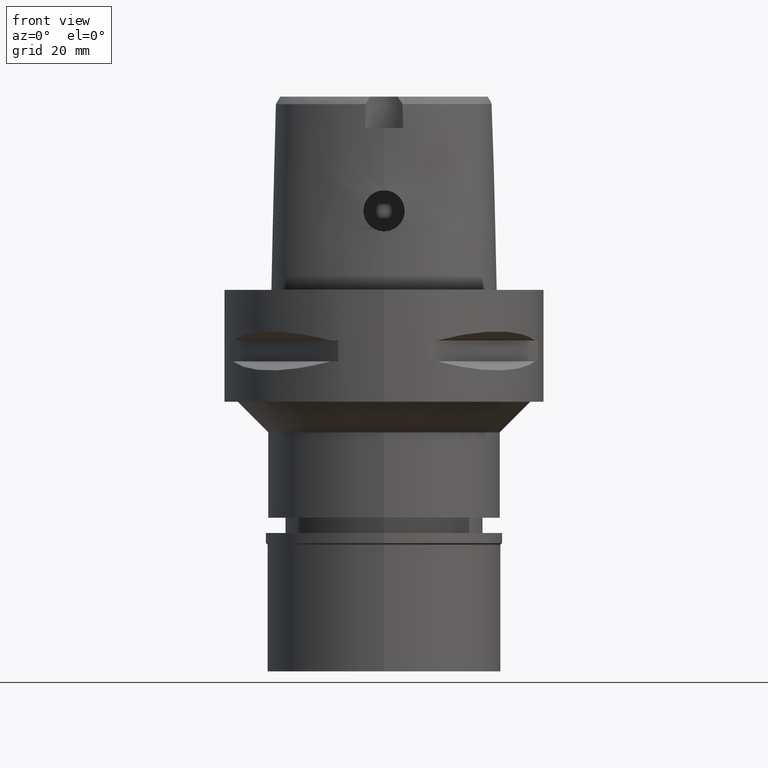
[diagram: clean part render]
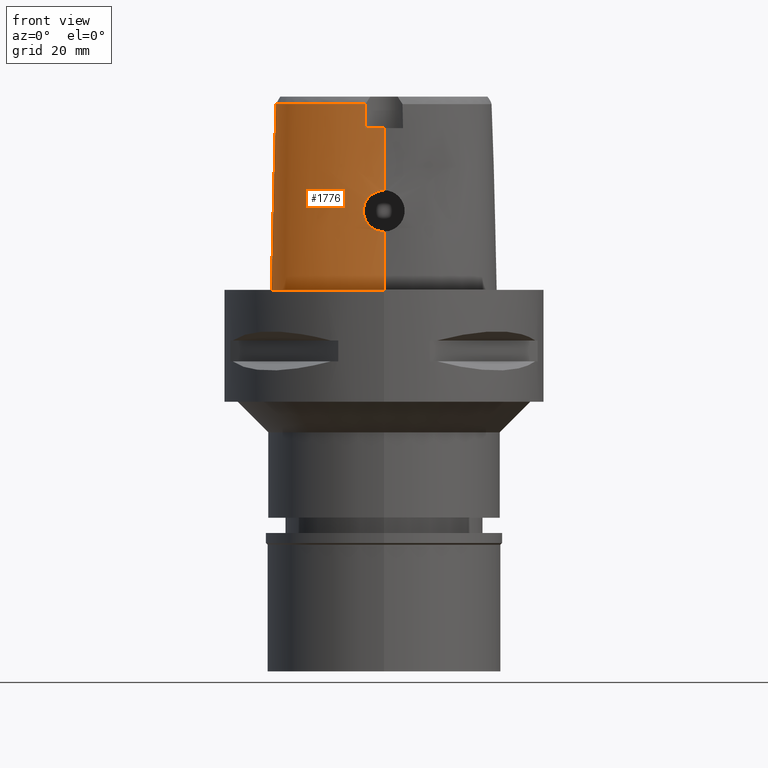
[diagram: same view with one face highlighted and labeled with its STEP entity id]
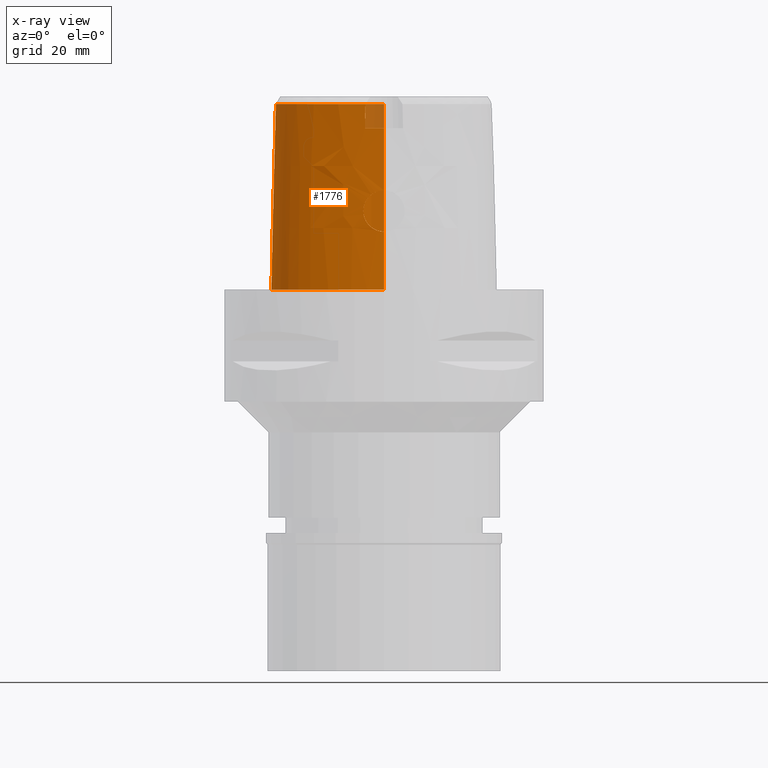
[diagram: x-ray of the same camera — body ghosted, the highlighted face saturated]
A machine part, front view. The second image highlights one B-rep face of the part: STEP entity #1776.
The next image is the same camera in x-ray: the body ghosted, the highlighted face saturated — about 2% of this face is hidden behind the body in this view.
In plain terms, the highlighted face is a freeform B-spline surface patch.
Its self-contained STEP definition (entity closure, byte-faithful):
#42 = CARTESIAN_POINT ( 'NONE',  ( -2.304099082777529617, -20.12795439635679173, 18.83496983991663498 ) ) ;
#99 = CARTESIAN_POINT ( 'NONE',  ( -21.99640701705999746, -0.2778990160308000279, -0.7304377242834000361 ) ) ;
#122 = CARTESIAN_POINT ( 'NONE',  ( -21.31039819279000014, -4.105938497841000512, 37.25232393846000178 ) ) ;
#129 = CARTESIAN_POINT ( 'NONE',  ( -1.826832687016999767E-12, -20.38876923348000147, 11.44999999999999929 ) ) ;
#137 = CARTESIAN_POINT ( 'NONE',  ( -2.575195270586990048, -20.11439625962917432, 18.62722947057160994 ) ) ;
#141 = CARTESIAN_POINT ( 'NONE',  ( -2.113823672984785240, -20.67499999865452054, 5.394426718470166082E-08 ) ) ;
#145 = CARTESIAN_POINT ( 'NONE',  ( -4.750826156157000213, 21.65775789734000156, 37.25232393846000178 ) ) ;
#156 = CARTESIAN_POINT ( 'NONE',  ( -3.836473194797889175, -20.10950281625643044, 14.19905474839410431 ) ) ;
#165 = CARTESIAN_POINT ( 'NONE',  ( -10.55288404862000107, 18.94467586310999607, 11.93048282995999898 ) ) ;
#181 = CARTESIAN_POINT ( 'NONE',  ( -3.756313801935056595, -20.12359777324607890, 13.98583869670187063 ) ) ;
#185 = ORIENTED_EDGE ( 'NONE', *, *, #479, .F. ) ;
#207 = CARTESIAN_POINT ( 'NONE',  ( -3.476909005003220088, -20.16686765807275350, 13.42277733186262445 ) ) ;
#210 = CARTESIAN_POINT ( 'NONE',  ( -19.55745547455991584, -11.29150218116892468, 36.52186244848002161 ) ) ;
#228 = CARTESIAN_POINT ( 'NONE',  ( -2.661040467928366127, -20.26469420361466689, 12.43119016471331939 ) ) ;
#231 = CARTESIAN_POINT ( 'NONE',  ( -4.757642277158513622, 21.67478330407429254, 36.52186244848002161 ) ) ;
#237 = ORIENTED_EDGE ( 'NONE', *, *, #3965, .T. ) ;
#250 = CARTESIAN_POINT ( 'NONE',  ( -1.559072170227480347, -20.34646737278823281, 11.76210362961364275 ) ) ;
#282 = CARTESIAN_POINT ( 'NONE',  ( -11.23887130291000069, -18.91049776120999937, -0.7304377242834000361 ) ) ;
#310 = CARTESIAN_POINT ( 'NONE',  ( -10.91263704988999983, -18.01320792876999732, 37.25232393846000178 ) ) ;
#329 = CARTESIAN_POINT ( 'NONE',  ( -1.818462913027204975, -20.33108044341388165, 11.88067330155456780 ) ) ;
#338 = CARTESIAN_POINT ( 'NONE',  ( -16.97022731178999777, -15.69280483203000109, -0.7304377242834000361 ) ) ;
#361 = B_SPLINE_CURVE_WITH_KNOTS ( 'NONE', 3,
 ( #4429, #1494, #1125, #758 ),
 .UNSPECIFIED., .F., .F.,
 ( 4, 4 ),
 ( 0.0000000000000000000, 1.000000000000000000 ),
 .UNSPECIFIED. ) ;
#364 = CARTESIAN_POINT ( 'NONE',  ( -21.76083710948999794, -6.805026042799999786, 11.93048282995999898 ) ) ;
#453 = CARTESIAN_POINT ( 'NONE',  ( -0.5021651535457528626, -20.18408048145803591, 19.52742942330840137 ) ) ;
#463 = CARTESIAN_POINT ( 'NONE',  ( -0.5985508175918999862, 23.20171275994999860, 11.93048282995999898 ) ) ;
#479 = EDGE_CURVE ( 'NONE', #3764, #3967, #361, .T. ) ;
#486 = CARTESIAN_POINT ( 'NONE',  ( 0.6850314082502000357, 22.83959044786999826, 24.59140338420999683 ) ) ;
#501 = CARTESIAN_POINT ( 'NONE',  ( -16.39211280191443620, -14.95758113319187110, 36.52186244848002161 ) ) ;
#521 = CARTESIAN_POINT ( 'NONE',  ( -4.017499509687334047, -20.04299937993057767, 16.02824823327924619 ) ) ;
#546 = CARTESIAN_POINT ( 'NONE',  ( -3.624896197794989394, -20.05423514832316201, 17.30722841461981076 ) ) ;
#550 = CARTESIAN_POINT ( 'NONE',  ( -5.098437016779843844, 22.52602538937306775, 5.394426718470166082E-08 ) ) ;
#570 = CARTESIAN_POINT ( 'NONE',  ( -3.655143282215830958, -20.14040390920880341, 13.75071885492125823 ) ) ;
#598 = CARTESIAN_POINT ( 'NONE',  ( -3.227734254722520291, -20.20018561865757434, 13.05015028806515254 ) ) ;
#602 = CARTESIAN_POINT ( 'NONE',  ( -21.14970188363933445, -6.717195958887935525, 36.52186244848002161 ) ) ;
#605 = CARTESIAN_POINT ( 'NONE',  ( -0.8548392422010232528, 23.47499999865888753, 5.394426718470166082E-08 ) ) ;
#619 = CARTESIAN_POINT ( 'NONE',  ( -3.482241038291161939, -20.06244686982989833, 17.57217720490708501 ) ) ;
#627 = CARTESIAN_POINT ( 'NONE',  ( -20.74942740752528536, 4.657187499540474285, 5.394426718470166082E-08 ) ) ;
#651 = CARTESIAN_POINT ( 'NONE',  ( -19.15132521134000143, -12.46323148781999990, 24.59140338420999683 ) ) ;
#679 = CARTESIAN_POINT ( 'NONE',  ( -21.44619292674999755, -6.759806549955999166, 24.59140338420999683 ) ) ;
#703 = CARTESIAN_POINT ( 'NONE',  ( -16.57726033543000099, -15.19304461332999878, 24.59140338420999683 ) ) ;
#728 = CARTESIAN_POINT ( 'NONE',  ( -18.89485274342999688, -12.27684370803999947, 37.25232393846000178 ) ) ;
#751 = CARTESIAN_POINT ( 'NONE',  ( 0.4439216898357000174, -19.74161839243000216, 37.25232393846000178 ) ) ;
#758 = CARTESIAN_POINT ( 'NONE',  ( 0.0000000000000000000, -20.18628283968999781, 19.55000000000000071 ) ) ;
#823 = CARTESIAN_POINT ( 'NONE',  ( -3.704239276368590961, -19.64128040965313460, 33.37395414949332917 ) ) ;
#888 = CARTESIAN_POINT ( 'NONE',  ( -3.268776803163001343, -20.07507427391859167, 17.90567709393551965 ) ) ;
#897 = CARTESIAN_POINT ( 'NONE',  ( -20.34961798440012970, -11.74885742119811916, 5.394426718470166082E-08 ) ) ;
#918 = CARTESIAN_POINT ( 'NONE',  ( -2.851627038865336417, -20.09936053837117953, 18.37589353291389571 ) ) ;
#921 = CARTESIAN_POINT ( 'NONE',  ( -3.637738201363999835, -19.56971413236999879, 36.52186244848000030 ) ) ;
#924 = CARTESIAN_POINT ( 'NONE',  ( -22.24453907719170331, -4.100468750007631336, 5.394426718470166082E-08 ) ) ;
#927 = CARTESIAN_POINT ( 'NONE',  ( -22.26285556650000075, -4.100361500042000173, -0.7304377242834000361 ) ) ;
#939 = CARTESIAN_POINT ( 'NONE',  ( -3.706339435656854864, -20.13208760920794660, 13.86332966446841652 ) ) ;
#942 = CARTESIAN_POINT ( 'NONE',  ( 6.719624567468000034E-11, 23.47499999998000320, 1.605012419265999776E-13 ) ) ;
#945 = CARTESIAN_POINT ( 'NONE',  ( -19.64947365754396813, -12.82525390545469079, 5.394426718470166082E-08 ) ) ;
#962 = CARTESIAN_POINT ( 'NONE',  ( -3.102551897856743679, -20.21526254957729307, 12.89595416156903696 ) ) ;
#965 = CARTESIAN_POINT ( 'NONE',  ( -21.32871527669578171, -4.105831244393836066, 36.52186244848002161 ) ) ;
#978 = ORIENTED_EDGE ( 'NONE', *, *, #2034, .F. ) ;
#987 = CARTESIAN_POINT ( 'NONE',  ( -4.049379457050867437, -20.05052600949130692, 15.57777600157836773 ) ) ;
#1011 = CARTESIAN_POINT ( 'NONE',  ( -1.643354294707895846, -20.34174474178620429, 11.79819588084503756 ) ) ;
#1016 = CARTESIAN_POINT ( 'NONE',  ( -20.65879047517000089, -10.48283619113000142, 11.93048282995999898 ) ) ;
#1043 = CARTESIAN_POINT ( 'NONE',  ( 0.6718639825362998641, -20.05378886195000021, 24.59140338420999683 ) ) ;
#1092 = CARTESIAN_POINT ( 'NONE',  ( 0.4479792488988000310, -20.05810149025000300, 24.59140338420999683 ) ) ;
#1115 = CARTESIAN_POINT ( 'NONE',  ( -19.54161169854999969, -11.28235477278999888, 37.25232393846000178 ) ) ;
#1125 = CARTESIAN_POINT ( 'NONE',  ( 6.838579738615130346E-09, -20.08420636276060378, 23.63333344114131052 ) ) ;
#1136 = CARTESIAN_POINT ( 'NONE',  ( -1.517097392495740937, -20.16081054504130066, 19.25513660860794829 ) ) ;
#1161 = CARTESIAN_POINT ( 'NONE',  ( -3.736722311398999796, -19.67781602443999844, 31.80000000000000071 ) ) ;
#1197 = VECTOR ( 'NONE', #1314, 1000.000000000000114 ) ;
#1213 = CARTESIAN_POINT ( 'NONE',  ( -17.53318575628000175, 10.12278928600000150, 24.59140338420999683 ) ) ;
#1229 = VERTEX_POINT ( 'NONE', #3049 ) ;
#1248 = CARTESIAN_POINT ( 'NONE',  ( -3.563526713806381974, -20.15431592875473044, 13.57433995874085397 ) ) ;
#1261 = CARTESIAN_POINT ( 'NONE',  ( -14.42198652087999911, 15.65278600325000014, -0.7304377242834000361 ) ) ;
#1279 = CARTESIAN_POINT ( 'NONE',  ( -3.649880986103389180, -20.05285280448561380, 17.25610404761987837 ) ) ;
#1293 = CARTESIAN_POINT ( 'NONE',  ( -19.86834419747999902, 4.339653626840999756, 37.25232393846000178 ) ) ;
#1307 = CARTESIAN_POINT ( 'NONE',  ( -2.842588197123581129, -20.09987458166016339, 18.38482802312677933 ) ) ;
#1313 = CARTESIAN_POINT ( 'NONE',  ( -14.40795638854461203, 15.64093749912458975, 5.394426718470166082E-08 ) ) ;
#1314 = DIRECTION ( 'NONE',  ( 2.239956200959959971E-12, 0.02499051290944955331, -0.9996876883629820520 ) ) ;
#1317 = CARTESIAN_POINT ( 'NONE',  ( -7.580410840723000199, 21.33037926387000383, -0.7304377242834000361 ) ) ;
#1330 = CARTESIAN_POINT ( 'NONE',  ( -3.383693069586779512, -20.17976184175676835, 13.27442373859632951 ) ) ;
#1333 = CARTESIAN_POINT ( 'NONE',  ( -20.67704215115892552, -8.734985316449199289, 36.52186244848002161 ) ) ;
#1335 = CARTESIAN_POINT ( 'NONE',  ( -18.56841065044135775, -14.16937988188461439, 5.394426718470166082E-08 ) ) ;
#1341 = VERTEX_POINT ( 'NONE', #3396 ) ;
#1349 = B_SPLINE_CURVE_WITH_KNOTS ( 'NONE', 3,
 ( #4116, #3088, #453, #1947, #3428, #4184, #1900, #4583, #4205, #1136, #2363, #2640, #1510, #2993, #2274, #4512, #3384, #42, #3887, #137, #3517, #3134, #1669, #1354, #1307, #918, #3160, #2491, #888, #619, #2468, #546, #1279, #2804, #1693, #2778, #2824, #4606, #2115, #2041, #3541, #3864, #521, #2388, #3910, #4660, #987, #3183, #1626, #3114, #2436, #2017, #3493, #156, #2415, #4259, #4283, #181, #1645, #939, #570, #1248, #2069, #207, #4230, #4684, #4334, #2092, #1330, #4307, #598, #962, #3938, #3565, #4630, #1717, #4705, #3204, #228, #2849, #3962, #2753, #329, #3309, #2894, #1011, #2590, #4384, #3984, #250, #1849, #4435, #1746 ),
 .UNSPECIFIED., .F., .F.,
 ( 4, 2, 2, 1, 1, 1, 1, 1, 2, 2, 2, 2, 2, 1, 1, 1, 2, 2, 2, 2, 2, 1, 1, 2, 2, 2, 2, 1, 2, 2, 2, 2, 1, 1, 1, 2, 2, 2, 2, 1, 1, 2, 2, 2, 1, 1, 1, 2, 2, 2, 2, 2, 1, 1, 2, 2, 4 ),
 ( 0.0000000000000000000, 0.06249999999999852895, 0.09374999999999779343, 0.1093749999999974187, 0.1171874999999973632, 0.1210937499999974742, 0.1230468749999976269, 0.1240234374999976963, 0.1245117187499977379, 0.1249999999999977796, 0.1874999999999982514, 0.2187499999999986677, 0.2343749999999988620, 0.2421874999999990008, 0.2460937499999988620, 0.2480468749999988065, 0.2490234374999987510, 0.2499999999999986677, 0.3125000000000180411, 0.3437500000000273670, 0.3593750000000316414, 0.3671875000000337508, 0.3710937500000344169, 0.3730468750000347500, 0.3750000000000350830, 0.4375000000000441869, 0.4687500000000483502, 0.4843750000000509037, 0.4921875000000516809, 0.5000000000000525135, 0.5625000000000592859, 0.5937500000000623945, 0.6093750000000640599, 0.6171875000000649480, 0.6210937500000651701, 0.6230468750000653921, 0.6250000000000655032, 0.6562500000000643929, 0.6718750000000636158, 0.6796875000000629496, 0.6835937500000625056, 0.6855468750000623945, 0.6875000000000621725, 0.7187500000000573985, 0.7343750000000548450, 0.7421875000000537348, 0.7460937500000529576, 0.7480468750000524025, 0.7500000000000519584, 0.8125000000000367484, 0.8437500000000288658, 0.8593750000000250910, 0.8671875000000233147, 0.8710937500000223155, 0.8730468750000219824, 0.8750000000000215383, 1.000000000000000000 ),
 .UNSPECIFIED. ) ;
#1354 = CARTESIAN_POINT ( 'NONE',  ( -2.829035854865215693, -20.10064330991650294, 18.39816081794787195 ) ) ;
#1411 = CARTESIAN_POINT ( 'NONE',  ( -20.36546124610000064, -11.75800453263999934, -0.7304377242834000361 ) ) ;
#1439 = CARTESIAN_POINT ( 'NONE',  ( -16.77374382361000116, -15.44292472268000083, 11.93048282995999898 ) ) ;
#1485 = CARTESIAN_POINT ( 'NONE',  ( -1.853278689953000047, -20.08023921586000071, 24.59140338420999683 ) ) ;
#1494 = CARTESIAN_POINT ( 'NONE',  ( 6.818620218912680930E-09, -19.98212988583247096, 27.71666688228205189 ) ) ;
#1510 = CARTESIAN_POINT ( 'NONE',  ( -1.541547282058243873, -20.15999205387464954, 19.24514843864790947 ) ) ;
#1578 = ORIENTED_EDGE ( 'NONE', *, *, #4688, .F. ) ;
#1583 = CARTESIAN_POINT ( 'NONE',  ( 6.719624567468000034E-11, 23.47499999998000320, 1.605012419265999776E-13 ) ) ;
#1588 = CARTESIAN_POINT ( 'NONE',  ( -13.93560863584000131, 15.24203789058000069, 24.59140338420999683 ) ) ;
#1601 = CARTESIAN_POINT ( 'NONE',  ( -3.736722311398999796, -19.67781602443999844, 31.80000000000000071 ) ) ;
#1612 = CARTESIAN_POINT ( 'NONE',  ( -22.07548129223000188, -6.850245535645000494, -0.7304377242834000361 ) ) ;
#1626 = CARTESIAN_POINT ( 'NONE',  ( -4.050824733842480541, -20.05812408616773368, 15.26908783582058859 ) ) ;
#1629 = LINE ( 'NONE', #3117, #2078 ) ;
#1630 = CARTESIAN_POINT ( 'NONE',  ( -18.06826688409508819, 10.43171874932905396, 5.394426718470166082E-08 ) ) ;
#1635 = CARTESIAN_POINT ( 'NONE',  ( -7.099337709408000130, 20.50831379254999831, 37.25232393846000178 ) ) ;
#1645 = CARTESIAN_POINT ( 'NONE',  ( -3.752369786519384132, -20.12426981888448552, 13.97609963568124769 ) ) ;
#1656 = CARTESIAN_POINT ( 'NONE',  ( -20.46725043262000199, 4.555493645197000063, 11.93048282995999898 ) ) ;
#1658 = VERTEX_POINT ( 'NONE', #1912 ) ;
#1669 = CARTESIAN_POINT ( 'NONE',  ( -2.797459852880915143, -20.10242065244126763, 18.42879076131220373 ) ) ;
#1680 = CARTESIAN_POINT ( 'NONE',  ( -0.5657070272831000723, 22.56734897904999926, 37.25232393846000178 ) ) ;
#1693 = CARTESIAN_POINT ( 'NONE',  ( -3.701409812263866783, -20.05012169819419654, 17.14417141151779944 ) ) ;
#1696 = CARTESIAN_POINT ( 'NONE',  ( -20.09619618741244551, -10.23243843868189096, 36.52186244848002161 ) ) ;
#1700 = CARTESIAN_POINT ( 'NONE',  ( -21.55524825879477291, -8.996025390239585917, 5.394426718470166082E-08 ) ) ;
#1717 = CARTESIAN_POINT ( 'NONE',  ( -2.902393990458672857, -20.23812546721740446, 12.67534469206559145 ) ) ;
#1720 = CARTESIAN_POINT ( 'NONE',  ( -2.376843896520461019, 22.39422508473878892, 36.52186244848002161 ) ) ;
#1746 = CARTESIAN_POINT ( 'NONE',  ( -1.826832687016999767E-12, -20.38876923348000147, 11.44999999999999929 ) ) ;
#1756 = B_SPLINE_SURFACE_WITH_KNOTS ( 'NONE', 3, 3, ( 
 ( #1957, #3144, #486, #3483 ),
 ( #3101, #3074, #4595, #3525 ),
 ( #3502, #463, #2741, #1680 ),
 ( #4195, #4269, #4668, #4215 ),
 ( #2378, #4643, #4570, #145 ),
 ( #1317, #3874, #3853, #1635 ),
 ( #2424, #165, #3809, #4616 ),
 ( #1261, #3441, #1588, #2027 ),
 ( #3170, #2764, #1213, #2719 ),
 ( #4244, #1656, #4174, #1293 ),
 ( #99, #2789, #2352, #1980 ),
 ( #927, #3462, #3896, #122 ),
 ( #1612, #364, #679, #3291 ),
 ( #2149, #4441, #2254, #2900 ),
 ( #4070, #1016, #4790, #1830 ),
 ( #1411, #4464, #2619, #1115 ),
 ( #2548, #2178, #651, #728 ),
 ( #3672, #2228, #1855, #4764 ),
 ( #338, #1439, #703, #3652 ),
 ( #1876, #2574, #3337, #4023 ),
 ( #282, #4292, #3084, #310 ),
 ( #3699, #3991, #2596, #2948 ),
 ( #4094, #2970, #1485, #4051 ),
 ( #1807, #4392, #1092, #751 ),
 ( #2926, #3316, #1043, #4418 ) ),
 .UNSPECIFIED., .F., .F., .F.,
 ( 4, 1, 1, 1, 1, 1, 1, 1, 1, 1, 1, 1, 1, 1, 1, 1, 1, 1, 1, 1, 1, 1, 4 ),
 ( 4, 4 ),
 ( -0.01173777939057999917, 0.0000000000000000000, 0.04166666666769999749, 0.08333333333431000578, 0.1250000000009000023, 0.1666666666676000219, 0.2500000000008000267, 0.3333333333339000282, 0.4166666666672000363, 0.5000000000004000134, 0.5416666666671000607, 0.5833333333336000459, 0.6250000000002999823, 0.6458333333335000148, 0.6666666666668999985, 0.6875000000001999512, 0.7083333333335000148, 0.7500000000001000311, 0.7916666666667000474, 0.8333333333333000637, 0.9166666666666000163, 1.000000000000000000, 1.008985696609000060 ),
 ( 2.170447224724999960E-10, 0.9999999889306999679 ),
 .UNSPECIFIED. ) ;
#1776 = ADVANCED_FACE ( 'NONE', ( #2052 ), #1756, .T. ) ;
#1807 = CARTESIAN_POINT ( 'NONE',  ( 0.4560943670248999715, -20.69106768591000289, -0.7304377242834000361 ) ) ;
#1830 = CARTESIAN_POINT ( 'NONE',  ( -20.07948490614000292, -10.22500063250000046, 37.25232393846000178 ) ) ;
#1849 = CARTESIAN_POINT ( 'NONE',  ( -1.038007860042968966, -20.37481398046827863, 11.54607788070364549 ) ) ;
#1855 = CARTESIAN_POINT ( 'NONE',  ( -18.12052900412999890, -13.74516023949999877, 24.59140338420999683 ) ) ;
#1876 = CARTESIAN_POINT ( 'NONE',  ( -14.68244497174999985, -17.23001773127000291, -0.7304377242834000361 ) ) ;
#1900 = CARTESIAN_POINT ( 'NONE',  ( -1.316968882914075101, -20.16708102885505483, 19.33099766236265893 ) ) ;
#1912 = CARTESIAN_POINT ( 'NONE',  ( -3.637738201363999835, -19.56971413236999879, 36.52186244848000030 ) ) ;
#1914 = VERTEX_POINT ( 'NONE', #1601 ) ;
#1947 = CARTESIAN_POINT ( 'NONE',  ( -0.8915481050311913069, -20.17747340676214307, 19.45286053089489897 ) ) ;
#1957 = CARTESIAN_POINT ( 'NONE',  ( 0.7234356452010001215, 23.47140592779999579, -0.7304377242834000361 ) ) ;
#1980 = CARTESIAN_POINT ( 'NONE',  ( -21.05621897926999964, -0.4440251824331999941, 37.25232393846000178 ) ) ;
#1999 = CARTESIAN_POINT ( 'NONE',  ( -18.90964971338537381, -12.28759719904793180, 36.52186244848002161 ) ) ;
#2017 = CARTESIAN_POINT ( 'NONE',  ( -3.925553713381779719, -20.09219264169007957, 14.49440713088822541 ) ) ;
#2020 = CARTESIAN_POINT ( 'NONE',  ( -13.70645028111636954, 15.04851272300554044, 36.52186244848002161 ) ) ;
#2023 = CARTESIAN_POINT ( 'NONE',  ( -1.465436232204999878E-11, -20.67499999999999716, 1.633878217906999793E-13 ) ) ;
#2027 = CARTESIAN_POINT ( 'NONE',  ( -13.69241969333000064, 15.03666383424999964, 37.25232393846000178 ) ) ;
#2034 = EDGE_CURVE ( 'NONE', #3967, #2376, #1349, .T. ) ;
#2041 = CARTESIAN_POINT ( 'NONE',  ( -3.843224375101378154, -20.04326965201131827, 16.80669846353523766 ) ) ;
#2044 = CARTESIAN_POINT ( 'NONE',  ( -19.88562090097893176, 4.345879983792301005, 36.52186244848002161 ) ) ;
#2052 = FACE_OUTER_BOUND ( 'NONE', #4440, .T. ) ;
#2069 = CARTESIAN_POINT ( 'NONE',  ( -3.530515804428643989, -20.15919286352747974, 13.51431142344410397 ) ) ;
#2078 = VECTOR ( 'NONE', #2756, 1000.000000000000114 ) ;
#2092 = CARTESIAN_POINT ( 'NONE',  ( -3.389445702475275102, -20.17898258087162944, 13.28319039044997396 ) ) ;
#2110 = B_SPLINE_CURVE_WITH_KNOTS ( 'NONE', 3,
 ( #1583, #605, #2809, #550, #2398, #3893, #1313, #1630, #627, #3522, #924, #4239, #1700, #4342, #897, #945, #1335, #2124, #3869, #2419, #2475, #141, #2023 ),
 .UNSPECIFIED., .F., .F.,
 ( 4, 1, 1, 1, 1, 1, 1, 1, 1, 1, 1, 1, 1, 1, 1, 1, 1, 1, 1, 1, 4 ),
 ( 0.0000000000000000000, 0.04166666666769999749, 0.08333333333431000578, 0.1250000000009000023, 0.1666666666676000219, 0.2500000000008000267, 0.3333333333339000282, 0.4166666666672000363, 0.5000000000004000134, 0.5416666666671000607, 0.5833333333336000459, 0.6250000000002999823, 0.6458333333335000148, 0.6666666666668999985, 0.6875000000001999512, 0.7083333333335000148, 0.7500000000001000311, 0.7916666666667000474, 0.8333333333333000637, 0.9166666666666000163, 1.000000000000000000 ),
 .UNSPECIFIED. ) ;
#2115 = CARTESIAN_POINT ( 'NONE',  ( -3.734198881099329181, -20.04849281986396647, 17.06790697594494333 ) ) ;
#2124 = CARTESIAN_POINT ( 'NONE',  ( -16.95889172509630072, -15.67838867081052712, 5.394426718470166082E-08 ) ) ;
#2149 = CARTESIAN_POINT ( 'NONE',  ( -21.57281239370000137, -9.001246195505999026, -0.7304377242834000361 ) ) ;
#2178 = CARTESIAN_POINT ( 'NONE',  ( -19.40779767925999977, -12.64961926760999944, 11.93048282995999898 ) ) ;
#2228 = CARTESIAN_POINT ( 'NONE',  ( -18.35112153540999813, -13.96357035289000059, 11.93048282995999898 ) ) ;
#2254 = CARTESIAN_POINT ( 'NONE',  ( -20.96392242861999833, -8.820258292971001168, 24.59140338420999683 ) ) ;
#2274 = CARTESIAN_POINT ( 'NONE',  ( -1.657708213642430817, -20.15606683021167456, 19.19718931528049666 ) ) ;
#2278 = EDGE_CURVE ( 'NONE', #3764, #1914, #4612, .T. ) ;
#2315 = CARTESIAN_POINT ( 'NONE',  ( -1.251533273950113712, -19.88005341379972890, 31.80000012753031413 ) ) ;
#2352 = CARTESIAN_POINT ( 'NONE',  ( -21.36961499186000069, -0.3886497936323999869, 24.59140338420999683 ) ) ;
#2363 = CARTESIAN_POINT ( 'NONE',  ( -1.531361603601433918, -20.16033442487177041, 19.24932868161032928 ) ) ;
#2376 = VERTEX_POINT ( 'NONE', #129 ) ;
#2378 = CARTESIAN_POINT ( 'NONE',  ( -5.105252916520999662, 22.54305024344000330, -0.7304377242834000361 ) ) ;
#2388 = CARTESIAN_POINT ( 'NONE',  ( -4.036685087364365820, -20.04559688298824227, 15.83449309712651321 ) ) ;
#2398 = CARTESIAN_POINT ( 'NONE',  ( -7.571159433668283256, 21.31457031133111713, 5.394426718470166082E-08 ) ) ;
#2415 = CARTESIAN_POINT ( 'NONE',  ( -3.794745376945647841, -20.11695093349811359, 14.08417439677006300 ) ) ;
#2418 = CARTESIAN_POINT ( 'NONE',  ( -0.7901461696979170668, 22.56201478746820399, 36.52186244848002161 ) ) ;
#2419 = CARTESIAN_POINT ( 'NONE',  ( -11.23259756681148858, -18.89324218623449525, 5.394426718470166082E-08 ) ) ;
#2424 = CARTESIAN_POINT ( 'NONE',  ( -10.75753573887999970, 19.18839675838000147, -0.7304377242834000361 ) ) ;
#2436 = CARTESIAN_POINT ( 'NONE',  ( -3.956610890796017799, -20.08538093254165346, 14.62527450727513845 ) ) ;
#2468 = CARTESIAN_POINT ( 'NONE',  ( -3.544032112836471349, -20.05881551394212892, 17.46370169139178330 ) ) ;
#2475 = CARTESIAN_POINT ( 'NONE',  ( -6.341471018971764906, -20.29812499867400888, 5.394426718470166082E-08 ) ) ;
#2491 = CARTESIAN_POINT ( 'NONE',  ( -3.088779611815302140, -20.08580365854490779, 18.13927671558208488 ) ) ;
#2548 = CARTESIAN_POINT ( 'NONE',  ( -19.66427014717000077, -12.83600704738999987, -0.7304377242834000361 ) ) ;
#2574 = CARTESIAN_POINT ( 'NONE',  ( -14.52531262751999996, -16.95413747258999848, 11.93048282995999898 ) ) ;
#2582 = ORIENTED_EDGE ( 'NONE', *, *, #3188, .F. ) ;
#2590 = CARTESIAN_POINT ( 'NONE',  ( -1.597046619668031298, -20.34436721359303846, 11.77813202158574413 ) ) ;
#2596 = CARTESIAN_POINT ( 'NONE',  ( -6.232237577198000089, -19.68961175736999891, 24.59140338420999683 ) ) ;
#2619 = CARTESIAN_POINT ( 'NONE',  ( -19.81622821440000237, -11.44090469273999844, 24.59140338420999683 ) ) ;
#2640 = CARTESIAN_POINT ( 'NONE',  ( -1.537473229461865154, -20.16012916357902895, 19.24682277656898677 ) ) ;
#2688 = CARTESIAN_POINT ( 'NONE',  ( -3.637738201363999835, -19.56971413236999879, 36.52186244848000030 ) ) ;
#2719 = CARTESIAN_POINT ( 'NONE',  ( -17.25769844234000061, 9.963736492648999743, 37.25232393846000178 ) ) ;
#2741 = CARTESIAN_POINT ( 'NONE',  ( -0.5821289224375000293, 22.88453086950000070, 24.59140338420999683 ) ) ;
#2753 = CARTESIAN_POINT ( 'NONE',  ( -1.983135000437550532, -20.32016783879232236, 11.96658691424555343 ) ) ;
#2756 = DIRECTION ( 'NONE',  ( -1.119958379758975927E-12, -0.02499051295360945474, -0.9996876883618780463 ) ) ;
#2764 = CARTESIAN_POINT ( 'NONE',  ( -17.80867307020999846, 10.28184207934999961, 11.93048282995999898 ) ) ;
#2770 = CARTESIAN_POINT ( 'NONE',  ( -2.503154198992980195, -19.81241979316230939, 31.80000012753031413 ) ) ;
#2778 = CARTESIAN_POINT ( 'NONE',  ( -3.719815774827158972, -20.04919652284363352, 17.10180193933601345 ) ) ;
#2789 = CARTESIAN_POINT ( 'NONE',  ( -21.68301100445999552, -0.3332744048315999796, 11.93048282995999898 ) ) ;
#2804 = CARTESIAN_POINT ( 'NONE',  ( -3.684679946967315711, -20.05099595578247218, 17.18118763025232809 ) ) ;
#2809 = CARTESIAN_POINT ( 'NONE',  ( -2.564517726680201282, 23.29328124867609873, 5.394426718470166082E-08 ) ) ;
#2824 = CARTESIAN_POINT ( 'NONE',  ( -3.727472022725065948, -20.04882033165820943, 17.08382271098091465 ) ) ;
#2827 = CARTESIAN_POINT ( 'NONE',  ( -21.07430010673063947, -0.4408303445192952585, 36.52186244848002161 ) ) ;
#2849 = CARTESIAN_POINT ( 'NONE',  ( -2.432602504665474896, -20.28555005867885086, 12.25084032482351581 ) ) ;
#2894 = CARTESIAN_POINT ( 'NONE',  ( -1.683435764107642951, -20.33938606615241440, 11.81633018416102132 ) ) ;
#2900 = CARTESIAN_POINT ( 'NONE',  ( -20.65947744608000036, -8.729764341702999531, 37.25232393846000178 ) ) ;
#2926 = CARTESIAN_POINT ( 'NONE',  ( 0.6840430853781001019, -20.68668155098999861, -0.7304377242834000361 ) ) ;
#2942 = ORIENTED_EDGE ( 'NONE', *, *, #4645, .T. ) ;
#2948 = CARTESIAN_POINT ( 'NONE',  ( -6.175998577349999685, -19.37631781066999892, 37.25232393846000178 ) ) ;
#2970 = CARTESIAN_POINT ( 'NONE',  ( -1.870070491122000078, -20.39691390805000282, 11.93048282995999898 ) ) ;
#2993 = CARTESIAN_POINT ( 'NONE',  ( -1.544745100927058523, -20.15988413239623611, 19.24383005366236432 ) ) ;
#3049 = CARTESIAN_POINT ( 'NONE',  ( -1.463669373056000196E-11, 22.56201468012000078, 36.52186680743999858 ) ) ;
#3074 = CARTESIAN_POINT ( 'NONE',  ( 0.4696382040349999509, 23.16972803812000237, 11.93048282995999898 ) ) ;
#3084 = CARTESIAN_POINT ( 'NONE',  ( -11.02138180090000041, -18.31230453958000126, 24.59140338420999683 ) ) ;
#3088 = CARTESIAN_POINT ( 'NONE',  ( -0.2465729415557290916, -20.18628283969000137, 19.55000000000000426 ) ) ;
#3101 = CARTESIAN_POINT ( 'NONE',  ( 0.4823619558034999977, 23.48603818325999981, -0.7304377242834000361 ) ) ;
#3114 = CARTESIAN_POINT ( 'NONE',  ( -4.029436667751283174, -20.06721303821910851, 15.01440978620335187 ) ) ;
#3117 = CARTESIAN_POINT ( 'NONE',  ( -1.826832687016999767E-12, -20.38876923348000147, 11.44999999999999929 ) ) ;
#3134 = CARTESIAN_POINT ( 'NONE',  ( -2.734529222344301402, -20.10590991053076948, 18.48815259471838957 ) ) ;
#3144 = CARTESIAN_POINT ( 'NONE',  ( 0.7042335267256000231, 23.15549818783999925, 11.93048282995999898 ) ) ;
#3160 = CARTESIAN_POINT ( 'NONE',  ( -2.857107388525124581, -20.09904791621536191, 18.37044643257095089 ) ) ;
#3170 = CARTESIAN_POINT ( 'NONE',  ( -18.08416038414999960, 10.44089487269999950, -0.7304377242834000361 ) ) ;
#3183 = CARTESIAN_POINT ( 'NONE',  ( -4.049869536808598625, -20.05129986479403215, 15.54465711046712428 ) ) ;
#3188 = EDGE_CURVE ( 'NONE', #1658, #1914, #4398, .T. ) ;
#3198 = CARTESIAN_POINT ( 'NONE',  ( -3.736722311398999796, -19.67781602443999844, 31.80000000000000071 ) ) ;
#3204 = CARTESIAN_POINT ( 'NONE',  ( -2.886021971856666202, -20.23993521848957755, 12.65861457159664916 ) ) ;
#3291 = CARTESIAN_POINT ( 'NONE',  ( -21.13154874401999805, -6.714587057112000323, 37.25232393846000178 ) ) ;
#3309 = CARTESIAN_POINT ( 'NONE',  ( -1.764072445785799026, -20.33452092467620531, 11.85389721181385703 ) ) ;
#3316 = CARTESIAN_POINT ( 'NONE',  ( 0.6779535339571999275, -20.37023520647000296, 11.93048282995999898 ) ) ;
#3337 = CARTESIAN_POINT ( 'NONE',  ( -14.36818028329000008, -16.67825721391999849, 24.59140338420999683 ) ) ;
#3384 = CARTESIAN_POINT ( 'NONE',  ( -2.177740692565643066, -20.13383618069716618, 18.91723801410913097 ) ) ;
#3396 = CARTESIAN_POINT ( 'NONE',  ( -1.465436232204999878E-11, -20.67499999999999716, 1.633878217906999793E-13 ) ) ;
#3428 = CARTESIAN_POINT ( 'NONE',  ( -1.022312669549168440, -20.17472045897218891, 19.42122845418660404 ) ) ;
#3432 = EDGE_CURVE ( 'NONE', #1229, #4626, #4591, .T. ) ;
#3441 = CARTESIAN_POINT ( 'NONE',  ( -14.17879757836000110, 15.44741194690999997, 11.93048282995999898 ) ) ;
#3462 = CARTESIAN_POINT ( 'NONE',  ( -21.94536977526999877, -4.102220499308999457, 11.93048282995999898 ) ) ;
#3483 = CARTESIAN_POINT ( 'NONE',  ( 0.6658292897748999684, 22.52368270790999816, 37.25232393846000178 ) ) ;
#3493 = CARTESIAN_POINT ( 'NONE',  ( -3.867994509549464333, -20.10354382197409606, 14.29758962169371372 ) ) ;
#3502 = CARTESIAN_POINT ( 'NONE',  ( -0.6149727127463000542, 23.51889465040999738, -0.7304377242834000361 ) ) ;
#3517 = CARTESIAN_POINT ( 'NONE',  ( -2.681092270827882817, -20.10878854267598470, 18.53585538952751932 ) ) ;
#3520 = CARTESIAN_POINT ( 'NONE',  ( -14.22011356156339268, -16.41829364186225959, 36.52186244848002161 ) ) ;
#3522 = CARTESIAN_POINT ( 'NONE',  ( -21.97832647653624250, -0.2810937502360148499, 5.394426718470166082E-08 ) ) ;
#3525 = CARTESIAN_POINT ( 'NONE',  ( 0.4441907004978999929, 22.53710774784999771, 37.25232393846000178 ) ) ;
#3541 = CARTESIAN_POINT ( 'NONE',  ( -3.921180028949368790, -20.04104750445544880, 16.54730076849723375 ) ) ;
#3544 = CARTESIAN_POINT ( 'NONE',  ( -17.90324032096868478, -13.53935111955040327, 36.52186244848002161 ) ) ;
#3565 = CARTESIAN_POINT ( 'NONE',  ( -2.959667657123309592, -20.23174018287047815, 12.73507955834137384 ) ) ;
#3568 = CARTESIAN_POINT ( 'NONE',  ( -7.108589416785393134, 20.52412325828517581, 36.52186244848002161 ) ) ;
#3652 = CARTESIAN_POINT ( 'NONE',  ( -16.38077684723999994, -14.94316450398999940, 37.25232393846000178 ) ) ;
#3672 = CARTESIAN_POINT ( 'NONE',  ( -18.58171406669000092, -14.18198046628000064, -0.7304377242834000361 ) ) ;
#3699 = CARTESIAN_POINT ( 'NONE',  ( -6.344715576895000098, -20.31619965077999979, -0.7304377242834000361 ) ) ;
#3764 = VERTEX_POINT ( 'NONE', #4221 ) ;
#3809 = CARTESIAN_POINT ( 'NONE',  ( -10.34823235836000066, 18.70095496783999778, 24.59140338420999683 ) ) ;
#3853 = CARTESIAN_POINT ( 'NONE',  ( -7.259695419846000419, 20.78233561632000104, 24.59140338420999683 ) ) ;
#3864 = CARTESIAN_POINT ( 'NONE',  ( -3.998372078226481108, -20.04197839684622195, 16.15804152896335921 ) ) ;
#3867 = CARTESIAN_POINT ( 'NONE',  ( -17.27359245833581980, 9.972912913898845488, 36.52186244848002161 ) ) ;
#3869 = CARTESIAN_POINT ( 'NONE',  ( -14.67337964352877400, -17.21410156132457203, 5.394426718470166082E-08 ) ) ;
#3874 = CARTESIAN_POINT ( 'NONE',  ( -7.420053130283999820, 21.05635744010000110, 11.93048282995999898 ) ) ;
#3887 = CARTESIAN_POINT ( 'NONE',  ( -2.505908426539208200, -20.11793534114831061, 18.68276955840385156 ) ) ;
#3890 = CARTESIAN_POINT ( 'NONE',  ( -10.91891098964894269, -18.03046406390204126, 36.52186244848002161 ) ) ;
#3893 = CARTESIAN_POINT ( 'NONE',  ( -10.74572890972380890, 19.17433593646061496, 5.394426718470166082E-08 ) ) ;
#3896 = CARTESIAN_POINT ( 'NONE',  ( -21.62788398402999945, -4.104079498574999540, 24.59140338420999683 ) ) ;
#3910 = CARTESIAN_POINT ( 'NONE',  ( -4.043902980537893654, -20.04716214162487375, 15.73784779713190574 ) ) ;
#3913 = CARTESIAN_POINT ( 'NONE',  ( -7.300578999876146113, -19.07170748891589795, 36.52186244848002161 ) ) ;
#3936 = ORIENTED_EDGE ( 'NONE', *, *, #2278, .T. ) ;
#3938 = CARTESIAN_POINT ( 'NONE',  ( -3.038069894017271899, -20.22283785541080903, 12.82039115562990972 ) ) ;
#3941 = CARTESIAN_POINT ( 'NONE',  ( -4.467522189395036314, -19.48130287050625142, 36.52186244848002161 ) ) ;
#3947 = CARTESIAN_POINT ( 'NONE',  ( 0.0000000000000000000, -20.18628283968999781, 19.55000000000000071 ) ) ;
#3962 = CARTESIAN_POINT ( 'NONE',  ( -2.094934931762427510, -20.31210455459852326, 12.03131566486571558 ) ) ;
#3965 = EDGE_CURVE ( 'NONE', #4626, #1341, #2110, .T. ) ;
#3967 = VERTEX_POINT ( 'NONE', #3947 ) ;
#3984 = CARTESIAN_POINT ( 'NONE',  ( -1.564161459830658796, -20.34618806537523028, 11.76423371488831471 ) ) ;
#3991 = CARTESIAN_POINT ( 'NONE',  ( -6.288476577046999694, -20.00290570407999979, 11.93048282995999898 ) ) ;
#4023 = CARTESIAN_POINT ( 'NONE',  ( -14.21104793905999841, -16.40237695523999761, 37.25232393846000178 ) ) ;
#4051 = CARTESIAN_POINT ( 'NONE',  ( -1.836486888782999927, -19.76356452367999950, 37.25232393846000178 ) ) ;
#4070 = CARTESIAN_POINT ( 'NONE',  ( -20.94844325968000120, -10.61175397044999968, -0.7304377242834000361 ) ) ;
#4094 = CARTESIAN_POINT ( 'NONE',  ( -1.886862292291000109, -20.71358860023999782, -0.7304377242834000361 ) ) ;
#4116 = CARTESIAN_POINT ( 'NONE',  ( 0.0000000000000000000, -20.18628283968999781, 19.55000000000000071 ) ) ;
#4174 = CARTESIAN_POINT ( 'NONE',  ( -20.16779731504999873, 4.447573636019000354, 24.59140338420999683 ) ) ;
#4184 = CARTESIAN_POINT ( 'NONE',  ( -1.218710204607966308, -20.16976515295027639, 19.36288873555080414 ) ) ;
#4195 = CARTESIAN_POINT ( 'NONE',  ( -2.568271206009000274, 23.31126238501000003, -0.7304377242834000361 ) ) ;
#4205 = CARTESIAN_POINT ( 'NONE',  ( -1.488554589355807423, -20.16175149399294142, 19.26659595023654248 ) ) ;
#4215 = CARTESIAN_POINT ( 'NONE',  ( -2.373090295326000021, 22.37624336469999875, 37.25232393846000178 ) ) ;
#4221 = CARTESIAN_POINT ( 'NONE',  ( 2.041042029990999821E-08, -19.88004246002000031, 31.80000004972000127 ) ) ;
#4230 = CARTESIAN_POINT ( 'NONE',  ( -3.449083010568995800, -20.17079490344193715, 13.37663836445438470 ) ) ;
#4233 = CARTESIAN_POINT ( 'NONE',  ( -10.15538788053401476, 18.47129535093718644, 36.52186244848002161 ) ) ;
#4239 = CARTESIAN_POINT ( 'NONE',  ( -22.05732874188516845, -6.847636718557430946, 5.394426718470166082E-08 ) ) ;
#4244 = CARTESIAN_POINT ( 'NONE',  ( -20.76670355020000258, 4.663413654376000750, -0.7304377242834000361 ) ) ;
#4259 = CARTESIAN_POINT ( 'NONE',  ( -3.772625616421835471, -20.12079898143034740, 14.02679301405773771 ) ) ;
#4269 = CARTESIAN_POINT ( 'NONE',  ( -2.503210902448000041, 22.99958937824000316, 11.93048282995999898 ) ) ;
#4283 = CARTESIAN_POINT ( 'NONE',  ( -3.762874773092987901, -20.12247471396803888, 14.00221788198894046 ) ) ;
#4292 = CARTESIAN_POINT ( 'NONE',  ( -11.13012655189999833, -18.61140115039000165, 11.93048282995999898 ) ) ;
#4302 = ORIENTED_EDGE ( 'NONE', *, *, #3432, .T. ) ;
#4307 = CARTESIAN_POINT ( 'NONE',  ( -3.306143786162188736, -20.19023257237418179, 13.15704347128199458 ) ) ;
#4334 = CARTESIAN_POINT ( 'NONE',  ( -3.399621443852326674, -20.17759862566812501, 13.29882734581749304 ) ) ;
#4342 = CARTESIAN_POINT ( 'NONE',  ( -20.93173252087798275, -10.60431640570919143, 5.394426718470166082E-08 ) ) ;
#4384 = CARTESIAN_POINT ( 'NONE',  ( -1.577301757021897011, -20.34546341941756964, 11.76976274525434185 ) ) ;
#4392 = CARTESIAN_POINT ( 'NONE',  ( 0.4520368079618999890, -20.37458458807999762, 11.93048282995999898 ) ) ;
#4398 = B_SPLINE_CURVE_WITH_KNOTS ( 'NONE', 3,
 ( #2688, #4446, #823, #1161 ),
 .UNSPECIFIED., .F., .F.,
 ( 4, 4 ),
 ( 0.0000000000000000000, 1.000000000000000000 ),
 .UNSPECIFIED. ) ;
#4418 = CARTESIAN_POINT ( 'NONE',  ( 0.6657744311152999916, -19.73734251743000101, 37.25232393846000178 ) ) ;
#4425 = B_SPLINE_CURVE_WITH_KNOTS ( 'NONE', 3,
 ( #921, #3941, #3913, #3890, #3520, #501, #3544, #1999, #210, #1696, #1333, #602, #965, #2827, #2044, #3867, #2020, #4233, #3568, #231, #1720, #2418, #4609 ),
 .UNSPECIFIED., .F., .F.,
 ( 4, 1, 1, 1, 1, 1, 1, 1, 1, 1, 1, 1, 1, 1, 1, 1, 1, 1, 1, 1, 4 ),
 ( 0.0000000000000000000, 0.03580973941716267261, 0.1234633994701191395, 0.1672902294965448455, 0.2111170595229705238, 0.2549438895493962298, 0.2768573045626090967, 0.2987707195758219081, 0.3206841345891399131, 0.3425975496022475864, 0.3864243796287783472, 0.4302512096550988319, 0.4740780396816297593, 0.5617316997344810048, 0.6493853597874376105, 0.7370390198401837178, 0.8246926798930350744, 0.8685195099195660573, 0.9123463399459811329, 0.9561731699724173028, 1.000000000000000000 ),
 .UNSPECIFIED. ) ;
#4429 = CARTESIAN_POINT ( 'NONE',  ( 2.041042029990999821E-08, -19.88004246002000031, 31.80000004972000127 ) ) ;
#4435 = CARTESIAN_POINT ( 'NONE',  ( -0.5057526035072211767, -20.38876923347999437, 11.44999999999999929 ) ) ;
#4440 = EDGE_LOOP ( 'NONE', ( #1578, #978, #185, #3936, #2582, #2942, #4302, #237 ) ) ;
#4441 = CARTESIAN_POINT ( 'NONE',  ( -21.26836741115999985, -8.910752244238000941, 11.93048282995999898 ) ) ;
#4446 = CARTESIAN_POINT ( 'NONE',  ( -3.671249123513567802, -19.60525173594972514, 34.94790829898666829 ) ) ;
#4464 = CARTESIAN_POINT ( 'NONE',  ( -20.09084473025000150, -11.59945461268999978, 11.93048282995999898 ) ) ;
#4512 = CARTESIAN_POINT ( 'NONE',  ( -1.835580386052855006, -20.14908877632251816, 19.11986537358136928 ) ) ;
#4550 = CARTESIAN_POINT ( 'NONE',  ( 2.041042029990999821E-08, -19.88004246002000031, 31.80000004972000127 ) ) ;
#4570 = CARTESIAN_POINT ( 'NONE',  ( -4.868968409612000059, 21.95285534604000333, 24.59140338420999683 ) ) ;
#4583 = CARTESIAN_POINT ( 'NONE',  ( -1.431416408215441916, -20.16358822634654757, 19.28889042402237664 ) ) ;
#4591 = LINE ( 'NONE', #4613, #1197 ) ;
#4595 = CARTESIAN_POINT ( 'NONE',  ( 0.4569144522663999841, 22.85341789299000226, 24.59140338420999683 ) ) ;
#4606 = CARTESIAN_POINT ( 'NONE',  ( -3.732525325786391956, -20.04857405143152249, 17.07187682481173852 ) ) ;
#4609 = CARTESIAN_POINT ( 'NONE',  ( -1.463669373056000196E-11, 22.56201468012000078, 36.52186680743999858 ) ) ;
#4612 = B_SPLINE_CURVE_WITH_KNOTS ( 'NONE', 3,
 ( #4550, #2315, #2770, #3198 ),
 .UNSPECIFIED., .F., .F.,
 ( 4, 4 ),
 ( 0.0000000000000000000, 1.000000000000000000 ),
 .UNSPECIFIED. ) ;
#4613 = CARTESIAN_POINT ( 'NONE',  ( -1.463669373056000196E-11, 22.56201468012000078, 36.52186680743999858 ) ) ;
#4616 = CARTESIAN_POINT ( 'NONE',  ( -10.14358066810000025, 18.45723407256999948, 37.25232393846000178 ) ) ;
#4626 = VERTEX_POINT ( 'NONE', #942 ) ;
#4630 = CARTESIAN_POINT ( 'NONE',  ( -2.919691061464743331, -20.23620746426379924, 12.69315417153491232 ) ) ;
#4643 = CARTESIAN_POINT ( 'NONE',  ( -4.987110663065999816, 22.24795279474000154, 11.93048282995999898 ) ) ;
#4645 = EDGE_CURVE ( 'NONE', #1658, #1229, #4425, .T. ) ;
#4660 = CARTESIAN_POINT ( 'NONE',  ( -4.047645902384546801, -20.04912716092317027, 15.64172417760094724 ) ) ;
#4668 = CARTESIAN_POINT ( 'NONE',  ( -2.438150598886999809, 22.68791637146999918, 24.59140338420999683 ) ) ;
#4684 = CARTESIAN_POINT ( 'NONE',  ( -3.414746926427762563, -20.17553392387492295, 13.32224777953191008 ) ) ;
#4688 = EDGE_CURVE ( 'NONE', #2376, #1341, #1629, .T. ) ;
#4705 = CARTESIAN_POINT ( 'NONE',  ( -2.890826327714344224, -20.23940490336091003, 12.66350716068483173 ) ) ;
#4764 = CARTESIAN_POINT ( 'NONE',  ( -17.88993647286000055, -13.52675012611000049, 37.25232393846000178 ) ) ;
#4790 = CARTESIAN_POINT ( 'NONE',  ( -20.36913769064999968, -10.35391841182000050, 24.59140338420999683 ) ) ;